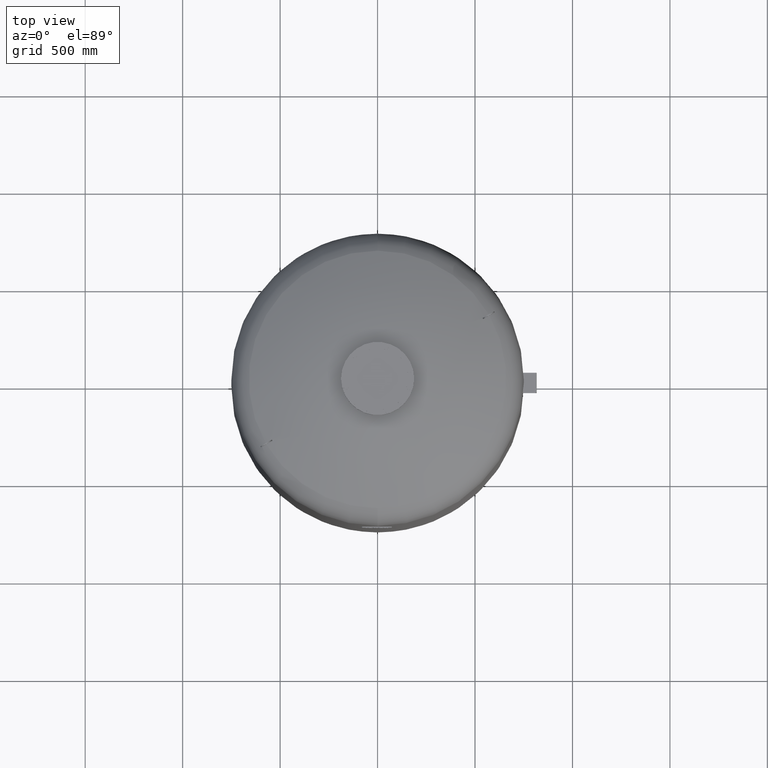
[diagram: clean part render]
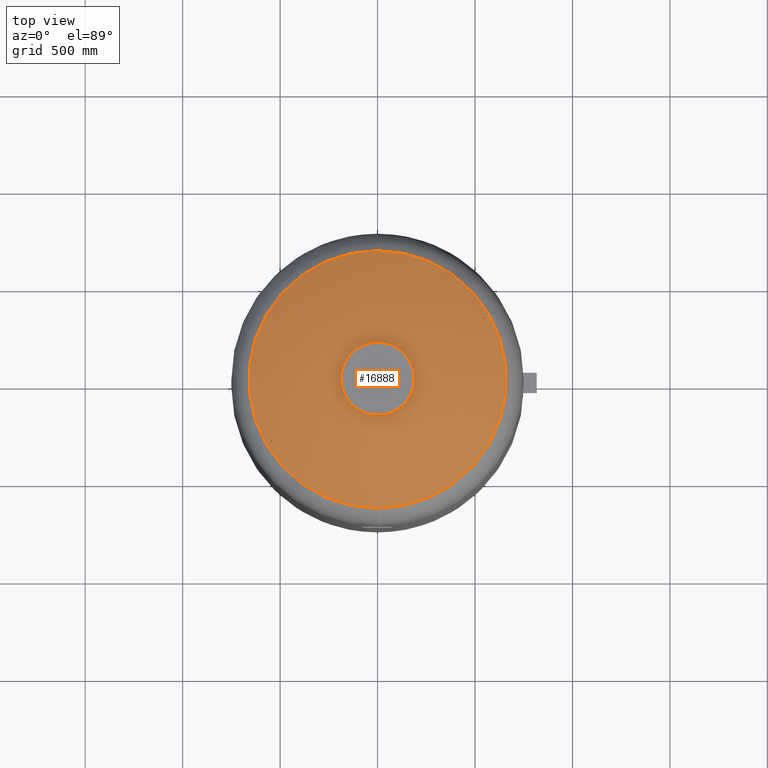
[diagram: same view with one face highlighted and labeled with its STEP entity id]
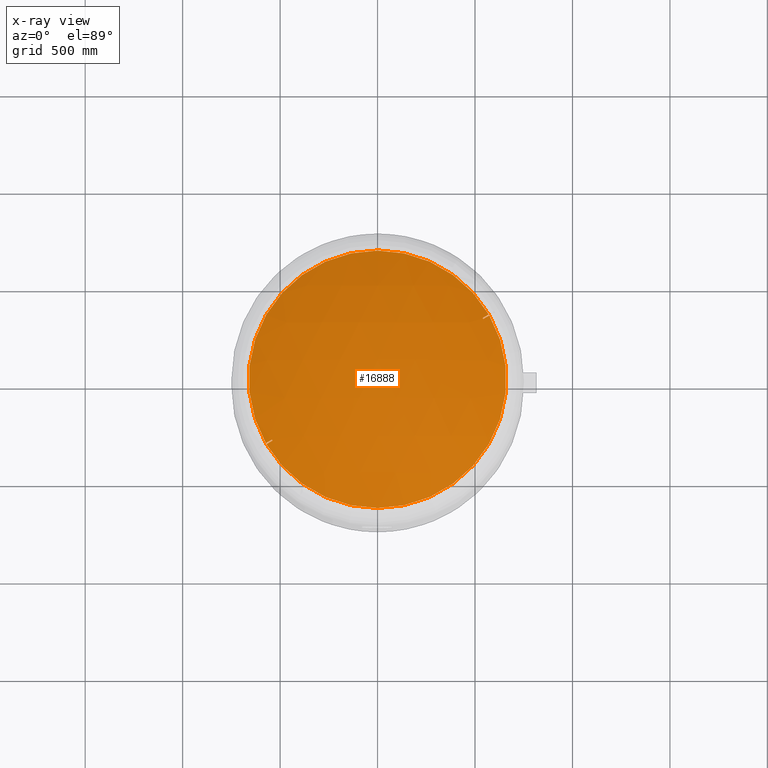
[diagram: x-ray of the same camera — body ghosted, the highlighted face saturated]
A machine part, top view. The second image highlights one B-rep face of the part: STEP entity #16888.
The next image is the same camera in x-ray: the body ghosted, the highlighted face saturated — about 0% of this face is hidden behind the body in this view.
In plain terms, the highlighted spherical surface has radius 1509 mm.
Its self-contained STEP definition (entity closure, byte-faithful):
#16292=CARTESIAN_POINT('',(2.782883E-014,-660.606666666666800,2821.716562866229200));
#16293=VERTEX_POINT('',#16292);
#16309=CARTESIAN_POINT('',(1.087271E-013,660.606666666666800,2821.716562866229200));
#16310=VERTEX_POINT('',#16309);
#16318=CARTESIAN_POINT('',(570.596255916202270,332.898003566943030,2821.716562866229200));
#16319=VERTEX_POINT('',#16318);
#16320=CARTESIAN_POINT('',(7.530601E-015,-2.797401E-014,2821.716562866229200));
#16321=DIRECTION('',(0.0,0.0,-1.0));
#16322=DIRECTION('',(1.0,0.0,0.0));
#16323=AXIS2_PLACEMENT_3D('',#16320,#16321,#16322);
#16324=CIRCLE('',#16323,660.606666666666800);
#16325=EDGE_CURVE('',#16310,#16319,#16324,.T.);
#16354=CARTESIAN_POINT('',(573.596255916202270,327.701851144236400,2821.716562866229200));
#16355=VERTEX_POINT('',#16354);
#16369=CARTESIAN_POINT('',(7.530601E-015,-2.797401E-014,2821.716562866229200));
#16370=DIRECTION('',(0.0,0.0,-1.0));
#16371=DIRECTION('',(1.0,0.0,0.0));
#16372=AXIS2_PLACEMENT_3D('',#16369,#16370,#16371);
#16373=CIRCLE('',#16372,660.606666666666800);
#16374=EDGE_CURVE('',#16355,#16293,#16373,.T.);
#16426=CARTESIAN_POINT('',(-570.596255916196580,-332.898003566952920,2821.716562866229700));
#16427=VERTEX_POINT('',#16426);
#16443=CARTESIAN_POINT('',(-539.004547741172360,-314.658522347942950,2838.879584180558100));
#16444=VERTEX_POINT('',#16443);
#16445=CARTESIAN_POINT('',(1.500000000005994,-2.598076211363742,1465.0));
#16446=DIRECTION('',(0.499999999999994,-0.866025403784442,0.0));
#16447=DIRECTION('',(0.0,0.0,1.0));
#16448=AXIS2_PLACEMENT_3D('',#16445,#16446,#16447);
#16449=CIRCLE('',#16448,1508.997017889697400);
#16450=EDGE_CURVE('',#16444,#16427,#16449,.T.);
#16493=CARTESIAN_POINT('',(-542.004547741172470,-309.462369925236320,2838.879584180558100));
#16494=VERTEX_POINT('',#16493);
#16495=CARTESIAN_POINT('',(-195.850324208316520,-113.074237402545550,1402.348481320245600));
#16496=DIRECTION('',(0.834590199910602,0.481850876581402,0.266981143436977));
#16497=DIRECTION('',(0.0,0.484652475916135,-0.874706795211036));
#16498=AXIS2_PLACEMENT_3D('',#16495,#16496,#16497);
#16499=CIRCLE('',#16498,1490.641692208577100);
#16500=EDGE_CURVE('',#16494,#16444,#16499,.T.);
#16578=CARTESIAN_POINT('',(-573.596255916196580,-327.701851144246290,2821.716562866229700));
#16579=VERTEX_POINT('',#16578);
#16602=CARTESIAN_POINT('',(-1.499999999993967,2.598076211342912,1465.0));
#16603=DIRECTION('',(-0.499999999999994,0.866025403784442,0.0));
#16604=DIRECTION('',(0.0,0.0,-1.0));
#16605=AXIS2_PLACEMENT_3D('',#16602,#16603,#16604);
#16606=CIRCLE('',#16605,1508.997017889697400);
#16607=EDGE_CURVE('',#16579,#16494,#16606,.T.);
#16634=CARTESIAN_POINT('',(7.530601E-015,-2.797401E-014,2821.716562866229200));
#16635=DIRECTION('',(0.0,0.0,-1.0));
#16636=DIRECTION('',(1.0,0.0,0.0));
#16637=AXIS2_PLACEMENT_3D('',#16634,#16635,#16636);
#16638=CIRCLE('',#16637,660.606666666666800);
#16639=EDGE_CURVE('',#16293,#16427,#16638,.T.);
#16644=CARTESIAN_POINT('',(7.530601E-015,-2.797401E-014,2821.716562866229200));
#16645=DIRECTION('',(0.0,0.0,-1.0));
#16646=DIRECTION('',(1.0,0.0,0.0));
#16647=AXIS2_PLACEMENT_3D('',#16644,#16645,#16646);
#16648=CIRCLE('',#16647,660.606666666666800);
#16649=EDGE_CURVE('',#16579,#16310,#16648,.T.);
#16669=CARTESIAN_POINT('',(539.004547741178380,314.658522347932720,2838.879584180558100));
#16670=VERTEX_POINT('',#16669);
#16671=CARTESIAN_POINT('',(-1.499999999993948,2.598076211342792,1465.0));
#16672=DIRECTION('',(-0.500000000000006,0.866025403784435,0.0));
#16673=DIRECTION('',(0.0,0.0,-1.0));
#16674=AXIS2_PLACEMENT_3D('',#16671,#16672,#16673);
#16675=CIRCLE('',#16674,1508.997017889697400);
#16676=EDGE_CURVE('',#16670,#16319,#16675,.T.);
#16719=CARTESIAN_POINT('',(542.004547741178380,309.462369925225970,2838.879584180558100));
#16720=VERTEX_POINT('',#16719);
#16721=CARTESIAN_POINT('',(195.850324208315390,113.074237402547780,1402.348481320245400));
#16722=DIRECTION('',(-0.834590199910595,-0.481850876581413,0.266981143436977));
#16723=DIRECTION('',(0.0,0.484652475916126,0.874706795211040));
#16724=AXIS2_PLACEMENT_3D('',#16721,#16722,#16723);
#16725=CIRCLE('',#16724,1490.641692208577100);
#16726=EDGE_CURVE('',#16720,#16670,#16725,.T.);
#16857=CARTESIAN_POINT('',(1.500000000006090,-2.598076211363818,1465.0));
#16858=DIRECTION('',(0.500000000000006,-0.866025403784435,0.0));
#16859=DIRECTION('',(0.0,0.0,1.0));
#16860=AXIS2_PLACEMENT_3D('',#16857,#16858,#16859);
#16861=CIRCLE('',#16860,1508.997017889697400);
#16862=EDGE_CURVE('',#16355,#16720,#16861,.T.);
#16871=CARTESIAN_POINT('',(1.607048E-013,-2.771988E-013,1465.0));
#16872=DIRECTION('',(0.0,-1.0,0.0));
#16873=DIRECTION('',(-1.0,0.0,0.0));
#16874=AXIS2_PLACEMENT_3D('',#16871,#16872,#16873);
#16875=SPHERICAL_SURFACE('',#16874,1509.0);
#16876=ORIENTED_EDGE('',*,*,#16450,.T.);
#16877=ORIENTED_EDGE('',*,*,#16639,.F.);
#16878=ORIENTED_EDGE('',*,*,#16374,.F.);
#16879=ORIENTED_EDGE('',*,*,#16862,.T.);
#16880=ORIENTED_EDGE('',*,*,#16726,.T.);
#16881=ORIENTED_EDGE('',*,*,#16676,.T.);
#16882=ORIENTED_EDGE('',*,*,#16325,.F.);
#16883=ORIENTED_EDGE('',*,*,#16649,.F.);
#16884=ORIENTED_EDGE('',*,*,#16607,.T.);
#16885=ORIENTED_EDGE('',*,*,#16500,.T.);
#16886=EDGE_LOOP('',(#16876,#16877,#16878,#16879,#16880,#16881,#16882,#16883,#16884,#16885));
#16887=FACE_OUTER_BOUND('',#16886,.T.);
#16888=ADVANCED_FACE('',(#16887),#16875,.T.);